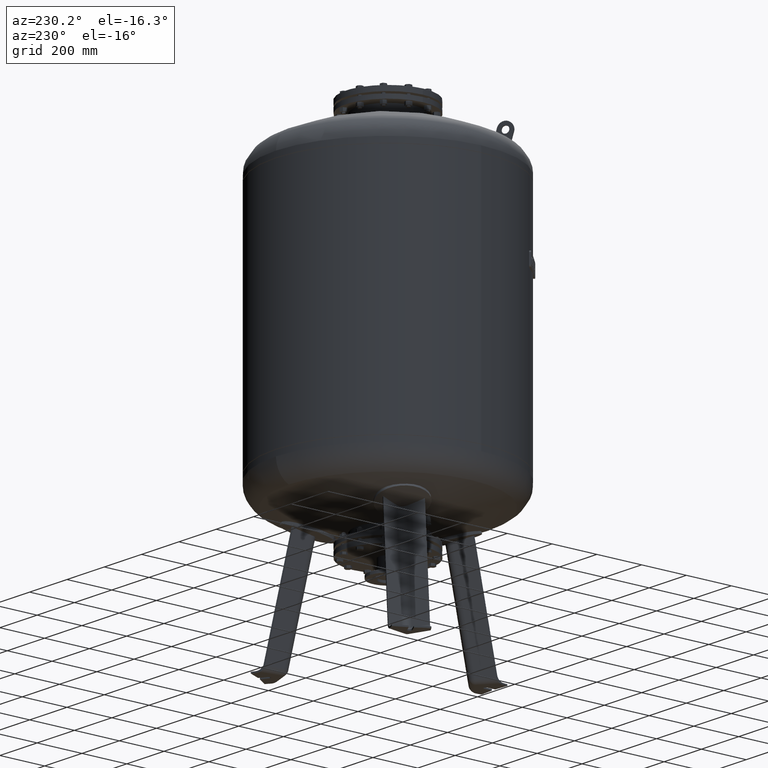
[diagram: clean part render]
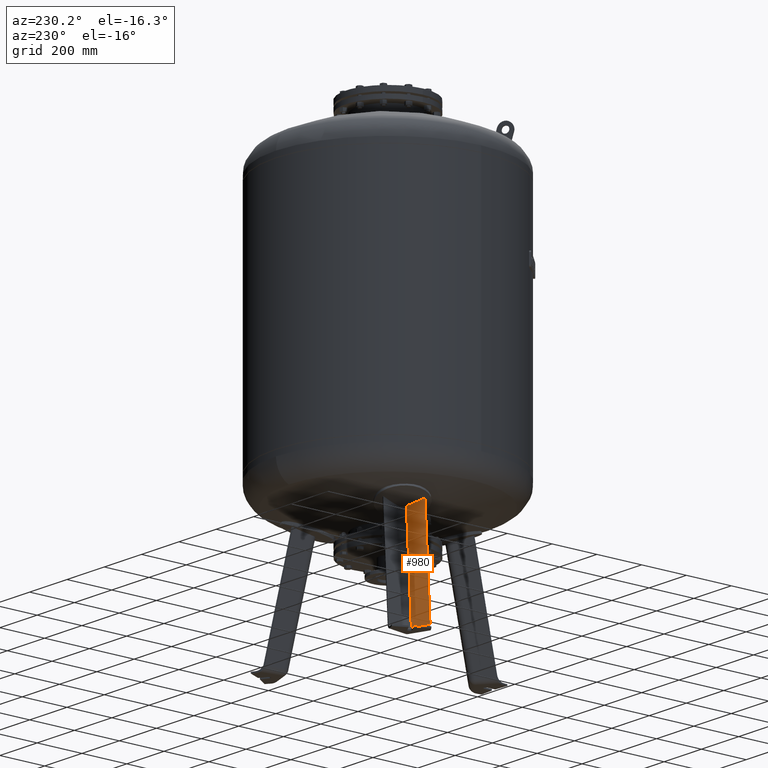
[diagram: same view with one face highlighted and labeled with its STEP entity id]
A machine part, auxiliary view. The second image highlights one B-rep face of the part: STEP entity #980.
In plain terms, the highlighted planar face has unit normal (-0.3243, 0.9325, 0.1588).
Its self-contained STEP definition (entity closure, byte-faithful):
#512=CARTESIAN_POINT('',(-335.966845019347490,175.337779953756860,27.029948423057284));
#513=VERTEX_POINT('',#512);
#522=CARTESIAN_POINT('',(-406.741484643137480,150.726382368576170,27.029948423057281));
#523=VERTEX_POINT('',#522);
#531=CARTESIAN_POINT('',(-406.741484643137480,150.726382368576170,27.029948423057281));
#532=DIRECTION('',(0.944521094592692,0.328450760190052,4.741265E-017));
#533=VECTOR('',#532,74.931772333057651);
#534=LINE('',#531,#533);
#535=EDGE_CURVE('',#523,#513,#534,.T.);
#802=CARTESIAN_POINT('',(-250.671269583507720,126.092356515190720,490.392952149244080));
#803=VERTEX_POINT('',#802);
#842=CARTESIAN_POINT('',(-318.185262678157870,99.598423778678864,508.106215259451630));
#843=VERTEX_POINT('',#842);
#844=CARTESIAN_POINT('',(-5.799916479440071,45.932582055353663,1461.157558058853700));
#845=DIRECTION('',(0.324282864533177,-0.932535537409927,-0.158802063077709));
#846=DIRECTION('',(0.180056805991956,-0.103955845408880,0.978147600733805));
#847=AXIS2_PLACEMENT_3D('',#844,#845,#846);
#848=CIRCLE('',#847,1004.376169121563900);
#849=EDGE_CURVE('',#843,#803,#848,.T.);
#959=CARTESIAN_POINT('',(-420.504224240904530,158.672303780133720,-47.735293817669401));
#960=DIRECTION('',(-0.324282864533177,0.932535537409927,0.158802063077709));
#961=DIRECTION('',(0.180056805991956,-0.103955845408880,0.978147600733806));
#962=AXIS2_PLACEMENT_3D('',#959,#960,#961);
#963=PLANE('',#962);
#964=CARTESIAN_POINT('',(-406.741484643137480,150.726382368576170,27.029948423057281));
#965=DIRECTION('',(0.180056805991956,-0.103955845408880,0.978147600733806));
#966=VECTOR('',#965,491.823796812966980);
#967=LINE('',#964,#966);
#968=EDGE_CURVE('',#523,#843,#967,.T.);
#969=ORIENTED_EDGE('',*,*,#968,.T.);
#970=ORIENTED_EDGE('',*,*,#849,.T.);
#971=CARTESIAN_POINT('',(-335.966845019347490,175.337779953756860,27.029948423057284));
#972=DIRECTION('',(0.180056805991956,-0.103955845408880,0.978147600733805));
#973=VECTOR('',#972,473.714808867876630);
#974=LINE('',#971,#973);
#975=EDGE_CURVE('',#513,#803,#974,.T.);
#976=ORIENTED_EDGE('',*,*,#975,.F.);
#977=ORIENTED_EDGE('',*,*,#535,.F.);
#978=EDGE_LOOP('',(#969,#970,#976,#977));
#979=FACE_OUTER_BOUND('',#978,.T.);
#980=ADVANCED_FACE('',(#979),#963,.T.);